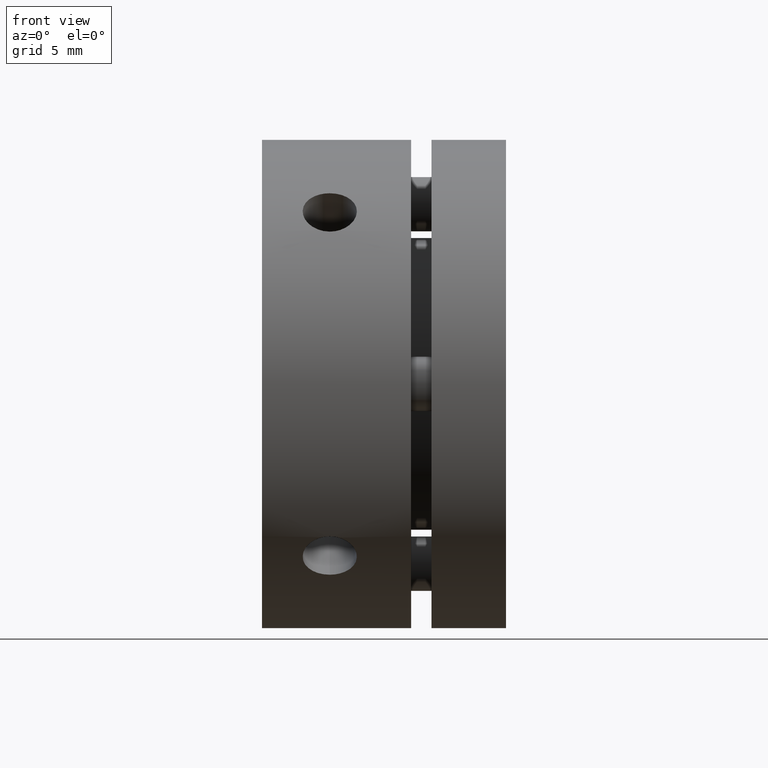
[diagram: clean part render]
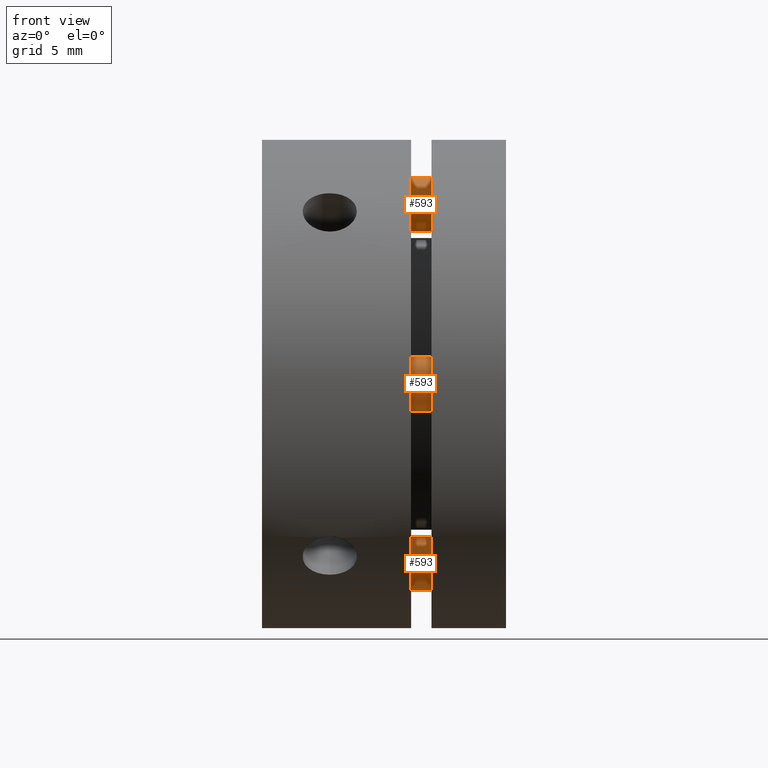
[diagram: same view with one multi-face feature highlighted, each face labeled with its STEP entity id]
A machine part, front view. The highlighted faces form ONE feature: a constant-radius fillet chain: 3 tangent blend faces with common blend radius 2 mm. The faces share edges in the B-rep.
Their STEP definitions:
[1] entity #593 (Cylinder):
#20 = ORIENTED_EDGE ( 'NONE', *, *, #1088, .T. ) ;
#27 = ORIENTED_EDGE ( 'NONE', *, *, #1082, .F. ) ;
#36 = ORIENTED_EDGE ( 'NONE', *, *, #1083, .F. ) ;
#37 = ORIENTED_EDGE ( 'NONE', *, *, #1086, .T. ) ;
#466 = DIRECTION ( 'NONE',  ( 0.0000000000000000000, 0.0000000000000000000, 1.000000000000000000 ) ) ;
#473 = DIRECTION ( 'NONE',  ( -0.0000000000000000000, 1.000000000000000000, -0.0000000000000000000 ) ) ;
#475 = CARTESIAN_POINT ( 'NONE',  ( 0.0000000000000000000, -12.00000000000000000, 0.0000000000000000000 ) ) ;
#593 = ADVANCED_FACE ( 'NONE', ( #1601 ), #1605, .T. ) ;
#715 = EDGE_LOOP ( 'NONE', ( #36, #37, #20, #27 ) ) ;
#1082 = EDGE_CURVE ( 'NONE', #1290, #1296, #2604, .T. ) ;
#1083 = EDGE_CURVE ( 'NONE', #1309, #1290, #2607, .T. ) ;
#1086 = EDGE_CURVE ( 'NONE', #1309, #1303, #2613, .T. ) ;
#1088 = EDGE_CURVE ( 'NONE', #1303, #1296, #2614, .T. ) ;
#1290 = VERTEX_POINT ( 'NONE', #3143 ) ;
#1296 = VERTEX_POINT ( 'NONE', #3149 ) ;
#1303 = VERTEX_POINT ( 'NONE', #3156 ) ;
#1309 = VERTEX_POINT ( 'NONE', #3162 ) ;
#1601 = FACE_OUTER_BOUND ( 'NONE', #715, .T. ) ;
#1605 = CYLINDRICAL_SURFACE ( 'NONE', #1809, 2.000000000000000000 ) ;
#1809 = AXIS2_PLACEMENT_3D ( 'NONE', #475, #473, #466 ) ;
#1922 = AXIS2_PLACEMENT_3D ( 'NONE', #3052, #3053, #3054 ) ;
#1925 = AXIS2_PLACEMENT_3D ( 'NONE', #3064, #3065, #3066 ) ;
#2604 = LINE ( 'NONE', #3044, #2610 ) ;
#2607 = CIRCLE ( 'NONE', #1922, 2.000000000000000000 ) ;
#2610 = VECTOR ( 'NONE', #3050, 1000.000000000000000 ) ;
#2613 = LINE ( 'NONE', #3051, #2615 ) ;
#2614 = CIRCLE ( 'NONE', #1925, 2.000000000000000000 ) ;
#2615 = VECTOR ( 'NONE', #3055, 1000.000000000000000 ) ;
#3044 = CARTESIAN_POINT ( 'NONE',  ( 0.0000000000000000000, -12.00000000000000000, 2.000000000000000000 ) ) ;
#3050 = DIRECTION ( 'NONE',  ( -0.0000000000000000000, 1.000000000000000000, -0.0000000000000000000 ) ) ;
#3051 = CARTESIAN_POINT ( 'NONE',  ( 2.449293598294706400E-016, -12.00000000000000000, -2.000000000000000000 ) ) ;
#3052 = CARTESIAN_POINT ( 'NONE',  ( 0.0000000000000000000, -12.00000000000000000, 0.0000000000000000000 ) ) ;
#3053 = DIRECTION ( 'NONE',  ( 0.0000000000000000000, -1.000000000000000000, 0.0000000000000000000 ) ) ;
#3054 = DIRECTION ( 'NONE',  ( 0.0000000000000000000, 0.0000000000000000000, -1.000000000000000000 ) ) ;
#3055 = DIRECTION ( 'NONE',  ( -0.0000000000000000000, 1.000000000000000000, -0.0000000000000000000 ) ) ;
#3064 = CARTESIAN_POINT ( 'NONE',  ( 0.0000000000000000000, 0.0000000000000000000, 0.0000000000000000000 ) ) ;
#3065 = DIRECTION ( 'NONE',  ( -0.0000000000000000000, -1.000000000000000000, -0.0000000000000000000 ) ) ;
#3066 = DIRECTION ( 'NONE',  ( 0.0000000000000000000, 0.0000000000000000000, 1.000000000000000000 ) ) ;
#3143 = CARTESIAN_POINT ( 'NONE',  ( 0.0000000000000000000, -12.00000000000000000, 2.000000000000000000 ) ) ;
#3149 = CARTESIAN_POINT ( 'NONE',  ( 0.0000000000000000000, 0.0000000000000000000, 2.000000000000000000 ) ) ;
#3156 = CARTESIAN_POINT ( 'NONE',  ( 2.449293598294706400E-016, 0.0000000000000000000, -2.000000000000000000 ) ) ;
#3162 = CARTESIAN_POINT ( 'NONE',  ( 2.449293598294706400E-016, -12.00000000000000000, -2.000000000000000000 ) ) ;
[2] entity #593 (Cylinder):
#20 = ORIENTED_EDGE ( 'NONE', *, *, #1088, .T. ) ;
#27 = ORIENTED_EDGE ( 'NONE', *, *, #1082, .F. ) ;
#36 = ORIENTED_EDGE ( 'NONE', *, *, #1083, .F. ) ;
#37 = ORIENTED_EDGE ( 'NONE', *, *, #1086, .T. ) ;
#466 = DIRECTION ( 'NONE',  ( 0.0000000000000000000, 0.0000000000000000000, 1.000000000000000000 ) ) ;
#473 = DIRECTION ( 'NONE',  ( -0.0000000000000000000, 1.000000000000000000, -0.0000000000000000000 ) ) ;
#475 = CARTESIAN_POINT ( 'NONE',  ( 0.0000000000000000000, -12.00000000000000000, 0.0000000000000000000 ) ) ;
#593 = ADVANCED_FACE ( 'NONE', ( #1601 ), #1605, .T. ) ;
#715 = EDGE_LOOP ( 'NONE', ( #36, #37, #20, #27 ) ) ;
#1082 = EDGE_CURVE ( 'NONE', #1290, #1296, #2604, .T. ) ;
#1083 = EDGE_CURVE ( 'NONE', #1309, #1290, #2607, .T. ) ;
#1086 = EDGE_CURVE ( 'NONE', #1309, #1303, #2613, .T. ) ;
#1088 = EDGE_CURVE ( 'NONE', #1303, #1296, #2614, .T. ) ;
#1290 = VERTEX_POINT ( 'NONE', #3143 ) ;
#1296 = VERTEX_POINT ( 'NONE', #3149 ) ;
#1303 = VERTEX_POINT ( 'NONE', #3156 ) ;
#1309 = VERTEX_POINT ( 'NONE', #3162 ) ;
#1601 = FACE_OUTER_BOUND ( 'NONE', #715, .T. ) ;
#1605 = CYLINDRICAL_SURFACE ( 'NONE', #1809, 2.000000000000000000 ) ;
#1809 = AXIS2_PLACEMENT_3D ( 'NONE', #475, #473, #466 ) ;
#1922 = AXIS2_PLACEMENT_3D ( 'NONE', #3052, #3053, #3054 ) ;
#1925 = AXIS2_PLACEMENT_3D ( 'NONE', #3064, #3065, #3066 ) ;
#2604 = LINE ( 'NONE', #3044, #2610 ) ;
#2607 = CIRCLE ( 'NONE', #1922, 2.000000000000000000 ) ;
#2610 = VECTOR ( 'NONE', #3050, 1000.000000000000000 ) ;
#2613 = LINE ( 'NONE', #3051, #2615 ) ;
#2614 = CIRCLE ( 'NONE', #1925, 2.000000000000000000 ) ;
#2615 = VECTOR ( 'NONE', #3055, 1000.000000000000000 ) ;
#3044 = CARTESIAN_POINT ( 'NONE',  ( 0.0000000000000000000, -12.00000000000000000, 2.000000000000000000 ) ) ;
#3050 = DIRECTION ( 'NONE',  ( -0.0000000000000000000, 1.000000000000000000, -0.0000000000000000000 ) ) ;
#3051 = CARTESIAN_POINT ( 'NONE',  ( 2.449293598294706400E-016, -12.00000000000000000, -2.000000000000000000 ) ) ;
#3052 = CARTESIAN_POINT ( 'NONE',  ( 0.0000000000000000000, -12.00000000000000000, 0.0000000000000000000 ) ) ;
#3053 = DIRECTION ( 'NONE',  ( 0.0000000000000000000, -1.000000000000000000, 0.0000000000000000000 ) ) ;
#3054 = DIRECTION ( 'NONE',  ( 0.0000000000000000000, 0.0000000000000000000, -1.000000000000000000 ) ) ;
#3055 = DIRECTION ( 'NONE',  ( -0.0000000000000000000, 1.000000000000000000, -0.0000000000000000000 ) ) ;
#3064 = CARTESIAN_POINT ( 'NONE',  ( 0.0000000000000000000, 0.0000000000000000000, 0.0000000000000000000 ) ) ;
#3065 = DIRECTION ( 'NONE',  ( -0.0000000000000000000, -1.000000000000000000, -0.0000000000000000000 ) ) ;
#3066 = DIRECTION ( 'NONE',  ( 0.0000000000000000000, 0.0000000000000000000, 1.000000000000000000 ) ) ;
#3143 = CARTESIAN_POINT ( 'NONE',  ( 0.0000000000000000000, -12.00000000000000000, 2.000000000000000000 ) ) ;
#3149 = CARTESIAN_POINT ( 'NONE',  ( 0.0000000000000000000, 0.0000000000000000000, 2.000000000000000000 ) ) ;
#3156 = CARTESIAN_POINT ( 'NONE',  ( 2.449293598294706400E-016, 0.0000000000000000000, -2.000000000000000000 ) ) ;
#3162 = CARTESIAN_POINT ( 'NONE',  ( 2.449293598294706400E-016, -12.00000000000000000, -2.000000000000000000 ) ) ;
[3] entity #593 (Cylinder):
#20 = ORIENTED_EDGE ( 'NONE', *, *, #1088, .T. ) ;
#27 = ORIENTED_EDGE ( 'NONE', *, *, #1082, .F. ) ;
#36 = ORIENTED_EDGE ( 'NONE', *, *, #1083, .F. ) ;
#37 = ORIENTED_EDGE ( 'NONE', *, *, #1086, .T. ) ;
#466 = DIRECTION ( 'NONE',  ( 0.0000000000000000000, 0.0000000000000000000, 1.000000000000000000 ) ) ;
#473 = DIRECTION ( 'NONE',  ( -0.0000000000000000000, 1.000000000000000000, -0.0000000000000000000 ) ) ;
#475 = CARTESIAN_POINT ( 'NONE',  ( 0.0000000000000000000, -12.00000000000000000, 0.0000000000000000000 ) ) ;
#593 = ADVANCED_FACE ( 'NONE', ( #1601 ), #1605, .T. ) ;
#715 = EDGE_LOOP ( 'NONE', ( #36, #37, #20, #27 ) ) ;
#1082 = EDGE_CURVE ( 'NONE', #1290, #1296, #2604, .T. ) ;
#1083 = EDGE_CURVE ( 'NONE', #1309, #1290, #2607, .T. ) ;
#1086 = EDGE_CURVE ( 'NONE', #1309, #1303, #2613, .T. ) ;
#1088 = EDGE_CURVE ( 'NONE', #1303, #1296, #2614, .T. ) ;
#1290 = VERTEX_POINT ( 'NONE', #3143 ) ;
#1296 = VERTEX_POINT ( 'NONE', #3149 ) ;
#1303 = VERTEX_POINT ( 'NONE', #3156 ) ;
#1309 = VERTEX_POINT ( 'NONE', #3162 ) ;
#1601 = FACE_OUTER_BOUND ( 'NONE', #715, .T. ) ;
#1605 = CYLINDRICAL_SURFACE ( 'NONE', #1809, 2.000000000000000000 ) ;
#1809 = AXIS2_PLACEMENT_3D ( 'NONE', #475, #473, #466 ) ;
#1922 = AXIS2_PLACEMENT_3D ( 'NONE', #3052, #3053, #3054 ) ;
#1925 = AXIS2_PLACEMENT_3D ( 'NONE', #3064, #3065, #3066 ) ;
#2604 = LINE ( 'NONE', #3044, #2610 ) ;
#2607 = CIRCLE ( 'NONE', #1922, 2.000000000000000000 ) ;
#2610 = VECTOR ( 'NONE', #3050, 1000.000000000000000 ) ;
#2613 = LINE ( 'NONE', #3051, #2615 ) ;
#2614 = CIRCLE ( 'NONE', #1925, 2.000000000000000000 ) ;
#2615 = VECTOR ( 'NONE', #3055, 1000.000000000000000 ) ;
#3044 = CARTESIAN_POINT ( 'NONE',  ( 0.0000000000000000000, -12.00000000000000000, 2.000000000000000000 ) ) ;
#3050 = DIRECTION ( 'NONE',  ( -0.0000000000000000000, 1.000000000000000000, -0.0000000000000000000 ) ) ;
#3051 = CARTESIAN_POINT ( 'NONE',  ( 2.449293598294706400E-016, -12.00000000000000000, -2.000000000000000000 ) ) ;
#3052 = CARTESIAN_POINT ( 'NONE',  ( 0.0000000000000000000, -12.00000000000000000, 0.0000000000000000000 ) ) ;
#3053 = DIRECTION ( 'NONE',  ( 0.0000000000000000000, -1.000000000000000000, 0.0000000000000000000 ) ) ;
#3054 = DIRECTION ( 'NONE',  ( 0.0000000000000000000, 0.0000000000000000000, -1.000000000000000000 ) ) ;
#3055 = DIRECTION ( 'NONE',  ( -0.0000000000000000000, 1.000000000000000000, -0.0000000000000000000 ) ) ;
#3064 = CARTESIAN_POINT ( 'NONE',  ( 0.0000000000000000000, 0.0000000000000000000, 0.0000000000000000000 ) ) ;
#3065 = DIRECTION ( 'NONE',  ( -0.0000000000000000000, -1.000000000000000000, -0.0000000000000000000 ) ) ;
#3066 = DIRECTION ( 'NONE',  ( 0.0000000000000000000, 0.0000000000000000000, 1.000000000000000000 ) ) ;
#3143 = CARTESIAN_POINT ( 'NONE',  ( 0.0000000000000000000, -12.00000000000000000, 2.000000000000000000 ) ) ;
#3149 = CARTESIAN_POINT ( 'NONE',  ( 0.0000000000000000000, 0.0000000000000000000, 2.000000000000000000 ) ) ;
#3156 = CARTESIAN_POINT ( 'NONE',  ( 2.449293598294706400E-016, 0.0000000000000000000, -2.000000000000000000 ) ) ;
#3162 = CARTESIAN_POINT ( 'NONE',  ( 2.449293598294706400E-016, -12.00000000000000000, -2.000000000000000000 ) ) ;